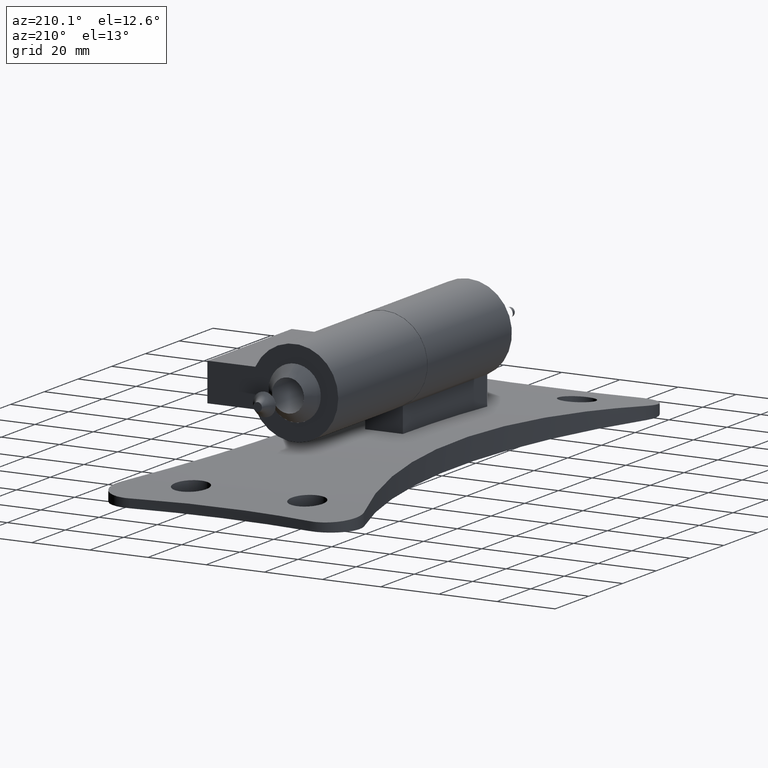
[diagram: clean part render]
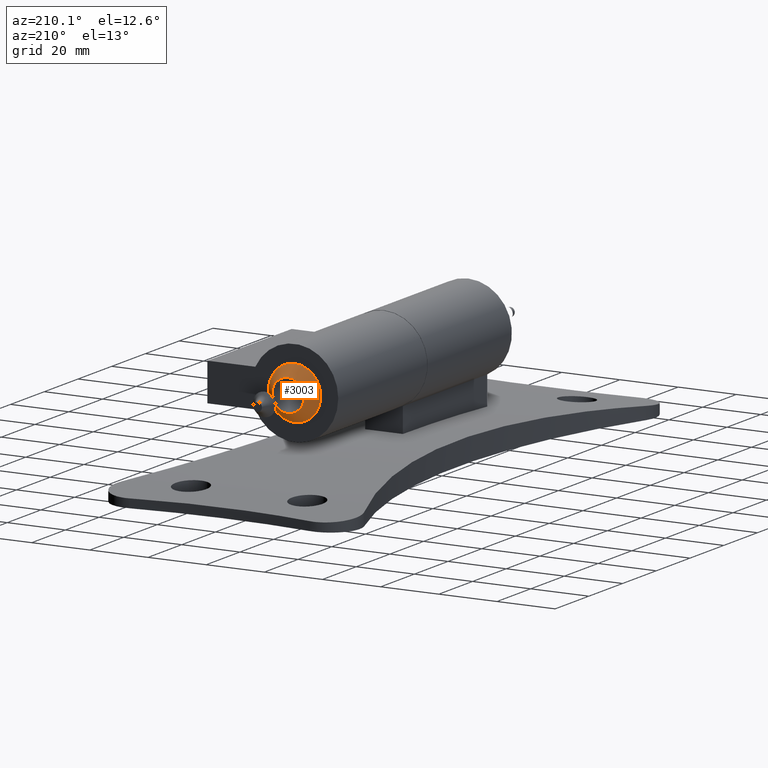
[diagram: same view with one face highlighted and labeled with its STEP entity id]
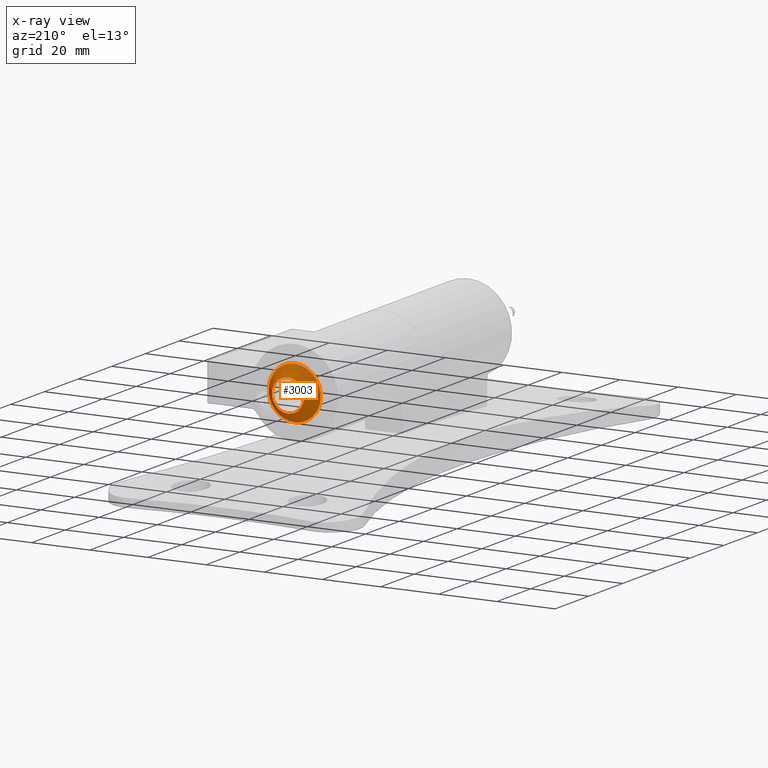
[diagram: x-ray of the same camera — body ghosted, the highlighted face saturated]
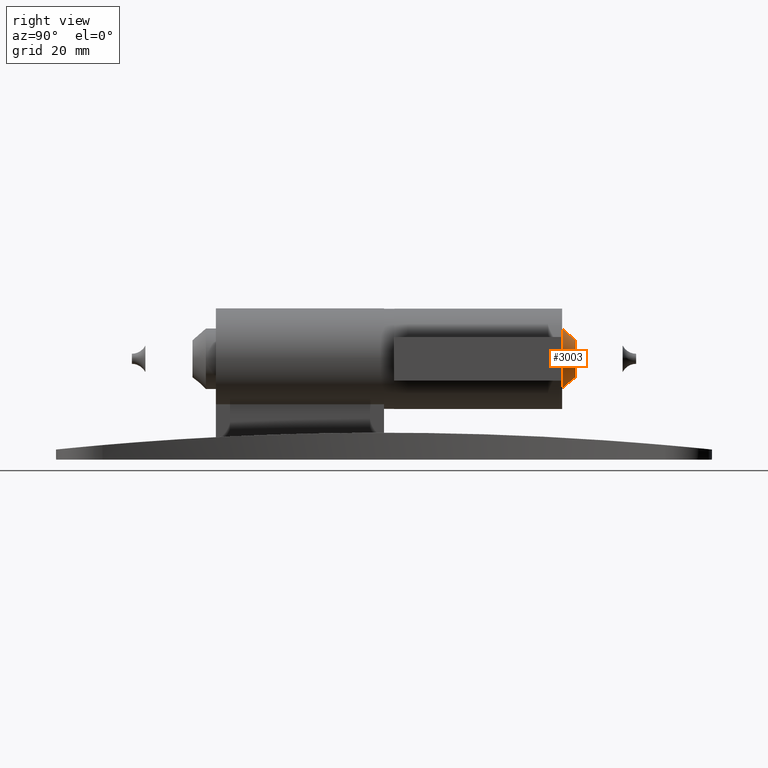
[diagram: same view with one face highlighted and labeled with its STEP entity id]
A machine part, auxiliary view. The second image highlights one B-rep face of the part: STEP entity #3003.
The next image is the same camera in x-ray: the body ghosted, the highlighted face saturated — about 0% of this face is hidden behind the body in this view.
A second angle (right view) of the same face is appended — the face is thin or edge-on in the first view.
In plain terms, the highlighted conical surface has half-angle 41.186 deg.
Its self-contained STEP definition (entity closure, byte-faithful):
#712 = EDGE_LOOP ( 'NONE', ( #2831 ) ) ;
#729 = DIRECTION ( 'NONE',  ( -0.000000000000000000, 1.000000000000000000, -0.000000000000000000 ) ) ;
#1597 = FACE_BOUND ( 'NONE', #712, .T. ) ;
#1983 = DIRECTION ( 'NONE',  ( -0.000000000000000000, 1.000000000000000000, -0.000000000000000000 ) ) ;
#2831 = ORIENTED_EDGE ( 'NONE', *, *, #3939, .F. ) ;
#3003 = ADVANCED_FACE ( 'NONE', ( #10940, #1597 ), #11660, .T. ) ;
#3038 = EDGE_LOOP ( 'NONE', ( #3773 ) ) ;
#3773 = ORIENTED_EDGE ( 'NONE', *, *, #5328, .T. ) ;
#3900 = CARTESIAN_POINT ( 'NONE',  ( 0.000000000000000000, 56.98058276074877426, 30.00000000000000000 ) ) ;
#3939 = EDGE_CURVE ( 'NONE', #8648, #8648, #5951, .T. ) ;
#4467 = CARTESIAN_POINT ( 'NONE',  ( 0.000000000000000000, 52.98058276074876716, 39.00000000000000711 ) ) ;
#4663 = CARTESIAN_POINT ( 'NONE',  ( 0.000000000000000000, 56.98058276074877426, 30.00000000000000000 ) ) ;
#4806 = CIRCLE ( 'NONE', #10072, 9.000000000000007105 ) ;
#5215 = AXIS2_PLACEMENT_3D ( 'NONE', #4663, #1983, #7214 ) ;
#5328 = EDGE_CURVE ( 'NONE', #9807, #9807, #4806, .T. ) ;
#5951 = CIRCLE ( 'NONE', #5215, 5.500000000000005329 ) ;
#6435 = DIRECTION ( 'NONE',  ( 0.000000000000000000, 0.000000000000000000, 1.000000000000000000 ) ) ;
#7214 = DIRECTION ( 'NONE',  ( 0.000000000000000000, 0.000000000000000000, 1.000000000000000000 ) ) ;
#8648 = VERTEX_POINT ( 'NONE', #9002 ) ;
#8732 = CARTESIAN_POINT ( 'NONE',  ( 0.000000000000000000, 52.98058276074876716, 30.00000000000000000 ) ) ;
#9002 = CARTESIAN_POINT ( 'NONE',  ( 0.000000000000000000, 56.98058276074877426, 35.50000000000000711 ) ) ;
#9796 = AXIS2_PLACEMENT_3D ( 'NONE', #3900, #10174, #6435 ) ;
#9807 = VERTEX_POINT ( 'NONE', #4467 ) ;
#10072 = AXIS2_PLACEMENT_3D ( 'NONE', #8732, #729, #10588 ) ;
#10174 = DIRECTION ( 'NONE',  ( 0.000000000000000000, -1.000000000000000000, 0.000000000000000000 ) ) ;
#10588 = DIRECTION ( 'NONE',  ( 0.000000000000000000, 0.000000000000000000, 1.000000000000000000 ) ) ;
#10940 = FACE_OUTER_BOUND ( 'NONE', #3038, .T. ) ;
#11660 = CONICAL_SURFACE ( 'NONE', #9796, 5.500000000000005329, 0.7188299996216239718 ) ;